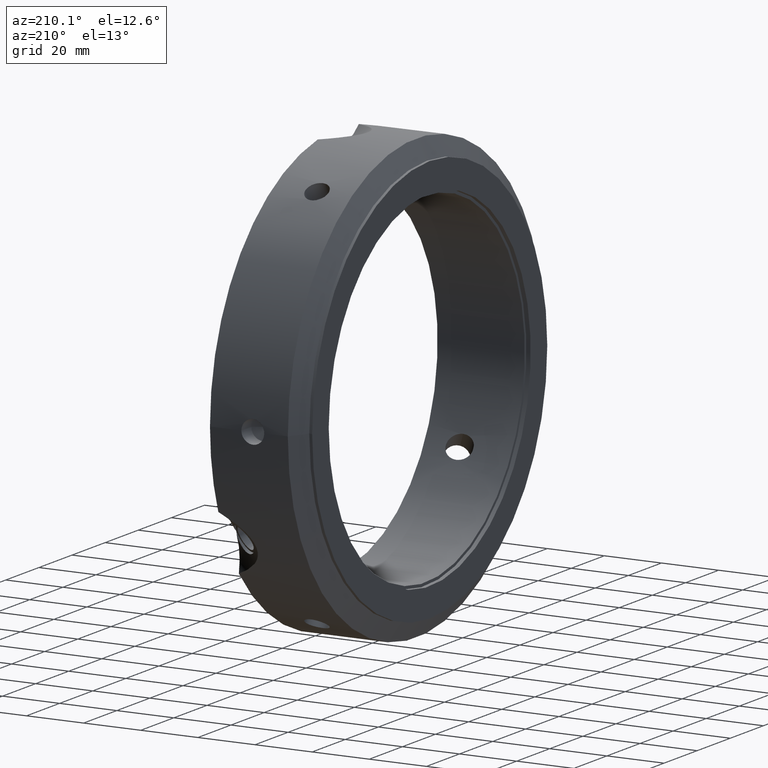
[diagram: clean part render]
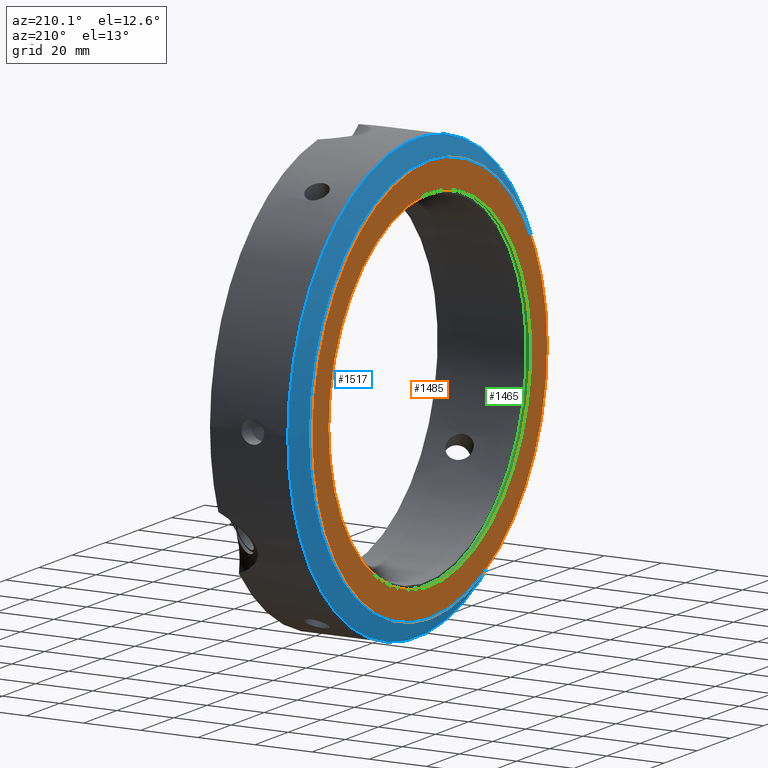
[diagram: same view with three faces highlighted in distinct colors, each labeled with its STEP entity id]
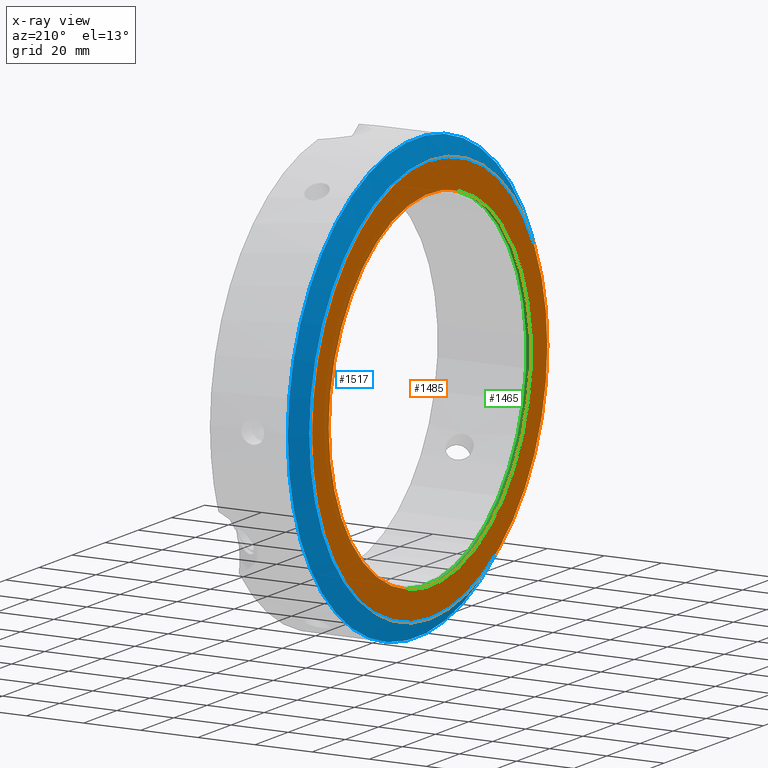
[diagram: x-ray of the same camera — body ghosted, the three highlighted faces saturated]
A machine part, auxiliary view with three faces highlighted in distinct colors.
The next image is the same camera in x-ray (body ghosted, the three faces saturated) — at least one of them is partly hidden behind the body in this view.
Their STEP definitions:

[orange] entity #1485 — the highlighted planar face has unit normal (-1, 0, 0).
#1451=CARTESIAN_POINT('',(-1.776357E-014,61.000000000000007,0.0));
#1452=VERTEX_POINT('',#1451);
#1453=CARTESIAN_POINT('',(-1.776357E-014,0.0,0.0));
#1454=DIRECTION('',(1.0,0.0,0.0));
#1455=DIRECTION('',(0.0,1.0,0.0));
#1456=AXIS2_PLACEMENT_3D('',#1453,#1454,#1455);
#1457=CIRCLE('',#1456,61.000000000000007);
#1458=EDGE_CURVE('',#1452,#1452,#1457,.T.);
#1466=CARTESIAN_POINT('',(-1.998401E-014,66.0,0.0));
#1467=DIRECTION('',(-1.0,0.0,0.0));
#1468=DIRECTION('',(0.0,0.0,1.0));
#1469=AXIS2_PLACEMENT_3D('',#1466,#1467,#1468);
#1470=PLANE('',#1469);
#1471=CARTESIAN_POINT('',(-2.220446E-014,71.0,0.0));
#1472=VERTEX_POINT('',#1471);
#1473=CARTESIAN_POINT('',(-2.220446E-014,0.0,0.0));
#1474=DIRECTION('',(1.0,0.0,0.0));
#1475=DIRECTION('',(0.0,1.0,0.0));
#1476=AXIS2_PLACEMENT_3D('',#1473,#1474,#1475);
#1477=CIRCLE('',#1476,71.0);
#1478=EDGE_CURVE('',#1472,#1472,#1477,.T.);
#1479=ORIENTED_EDGE('',*,*,#1478,.F.);
#1480=EDGE_LOOP('',(#1479));
#1481=FACE_OUTER_BOUND('',#1480,.T.);
#1482=ORIENTED_EDGE('',*,*,#1458,.T.);
#1483=EDGE_LOOP('',(#1482));
#1484=FACE_BOUND('',#1483,.T.);
#1485=ADVANCED_FACE('',(#1481,#1484),#1470,.T.);

[blue] entity #1517 — the highlighted conical surface has half-angle 60 deg.
#1117=CARTESIAN_POINT('',(4.752776749732535,77.5,0.0));
#1118=VERTEX_POINT('',#1117);
#1119=CARTESIAN_POINT('',(4.752776749732535,0.0,0.0));
#1120=DIRECTION('',(1.0,0.0,0.0));
#1121=DIRECTION('',(0.0,1.0,0.0));
#1122=AXIS2_PLACEMENT_3D('',#1119,#1120,#1121);
#1123=CIRCLE('',#1122,77.5);
#1124=EDGE_CURVE('',#1118,#1118,#1123,.T.);
#1491=CARTESIAN_POINT('',(0.999999999999978,71.0,0.0));
#1492=VERTEX_POINT('',#1491);
#1493=CARTESIAN_POINT('',(0.999999999999978,0.0,0.0));
#1494=DIRECTION('',(1.0,0.0,0.0));
#1495=DIRECTION('',(0.0,1.0,0.0));
#1496=AXIS2_PLACEMENT_3D('',#1493,#1494,#1495);
#1497=CIRCLE('',#1496,71.0);
#1498=EDGE_CURVE('',#1492,#1492,#1497,.T.);
#1506=CARTESIAN_POINT('',(2.876388374866256,0.0,0.0));
#1507=DIRECTION('',(1.0,0.0,0.0));
#1508=DIRECTION('',(0.0,1.0,0.0));
#1509=AXIS2_PLACEMENT_3D('',#1506,#1507,#1508);
#1510=CONICAL_SURFACE('',#1509,74.25,60.000000000000043);
#1511=ORIENTED_EDGE('',*,*,#1124,.F.);
#1512=EDGE_LOOP('',(#1511));
#1513=FACE_OUTER_BOUND('',#1512,.T.);
#1514=ORIENTED_EDGE('',*,*,#1498,.T.);
#1515=EDGE_LOOP('',(#1514));
#1516=FACE_BOUND('',#1515,.T.);
#1517=ADVANCED_FACE('',(#1513,#1516),#1510,.T.);

[green] entity #1465 — the highlighted cylindrical surface (bore or boss wall) has radius 61 mm, axis along (1, 0, 0).
#1423=CARTESIAN_POINT('',(1.499999999999983,61.000000000000007,0.0));
#1424=VERTEX_POINT('',#1423);
#1425=CARTESIAN_POINT('',(1.499999999999983,0.0,0.0));
#1426=DIRECTION('',(1.0,0.0,0.0));
#1427=DIRECTION('',(0.0,1.0,0.0));
#1428=AXIS2_PLACEMENT_3D('',#1425,#1426,#1427);
#1429=CIRCLE('',#1428,61.000000000000007);
#1430=EDGE_CURVE('',#1424,#1424,#1429,.T.);
#1446=CARTESIAN_POINT('',(0.749999999999982,0.0,0.0));
#1447=DIRECTION('',(1.0,0.0,0.0));
#1448=DIRECTION('',(0.0,1.0,0.0));
#1449=AXIS2_PLACEMENT_3D('',#1446,#1447,#1448);
#1450=CYLINDRICAL_SURFACE('',#1449,61.000000000000007);
#1451=CARTESIAN_POINT('',(-1.776357E-014,61.000000000000007,0.0));
#1452=VERTEX_POINT('',#1451);
#1453=CARTESIAN_POINT('',(-1.776357E-014,0.0,0.0));
#1454=DIRECTION('',(1.0,0.0,0.0));
#1455=DIRECTION('',(0.0,1.0,0.0));
#1456=AXIS2_PLACEMENT_3D('',#1453,#1454,#1455);
#1457=CIRCLE('',#1456,61.000000000000007);
#1458=EDGE_CURVE('',#1452,#1452,#1457,.T.);
#1459=ORIENTED_EDGE('',*,*,#1458,.F.);
#1460=EDGE_LOOP('',(#1459));
#1461=FACE_OUTER_BOUND('',#1460,.T.);
#1462=ORIENTED_EDGE('',*,*,#1430,.T.);
#1463=EDGE_LOOP('',(#1462));
#1464=FACE_BOUND('',#1463,.T.);
#1465=ADVANCED_FACE('',(#1461,#1464),#1450,.F.);